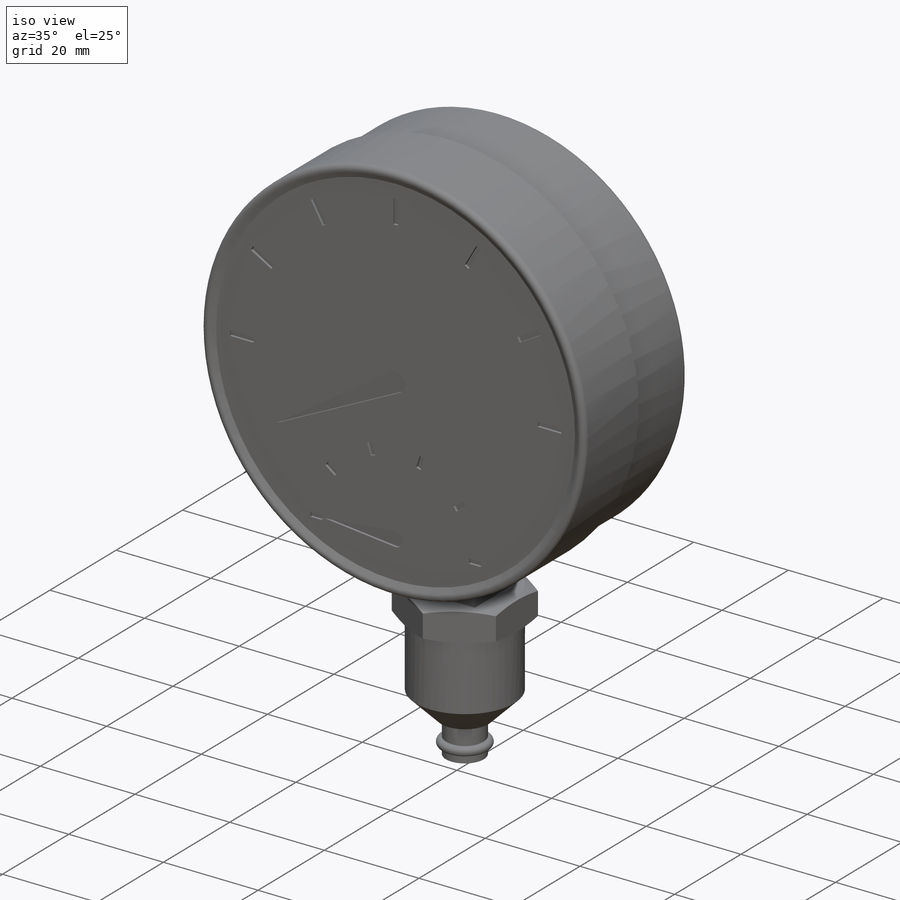
[diagram: iso view]
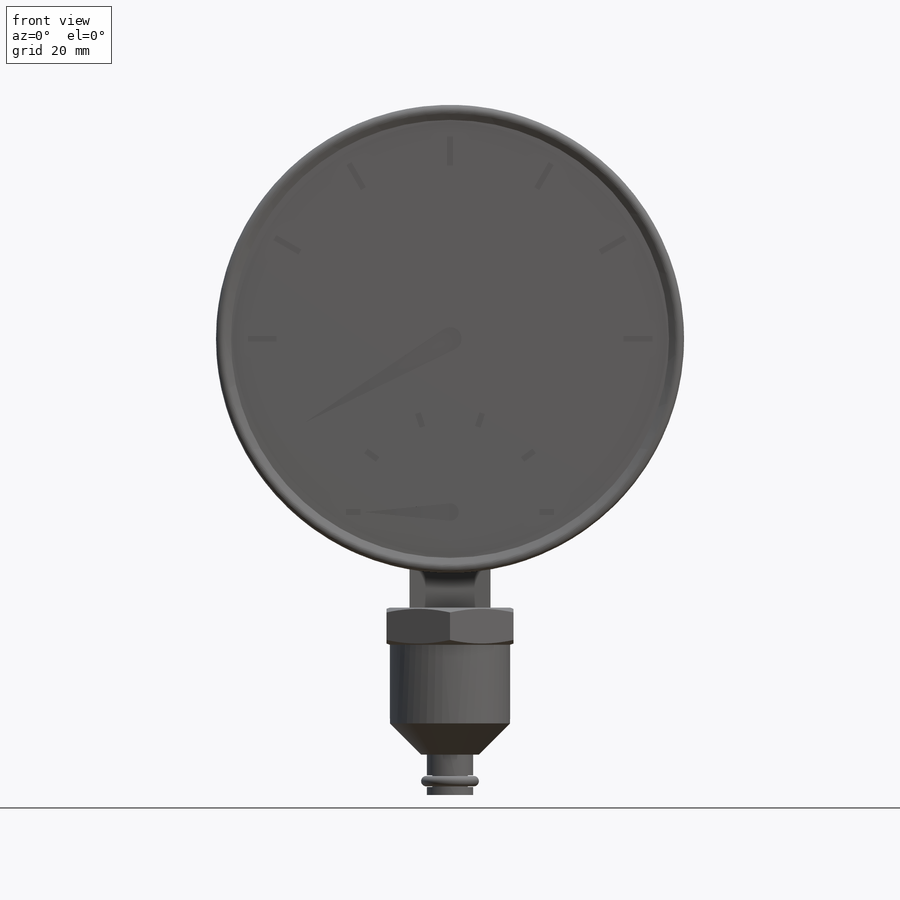
[diagram: front view]
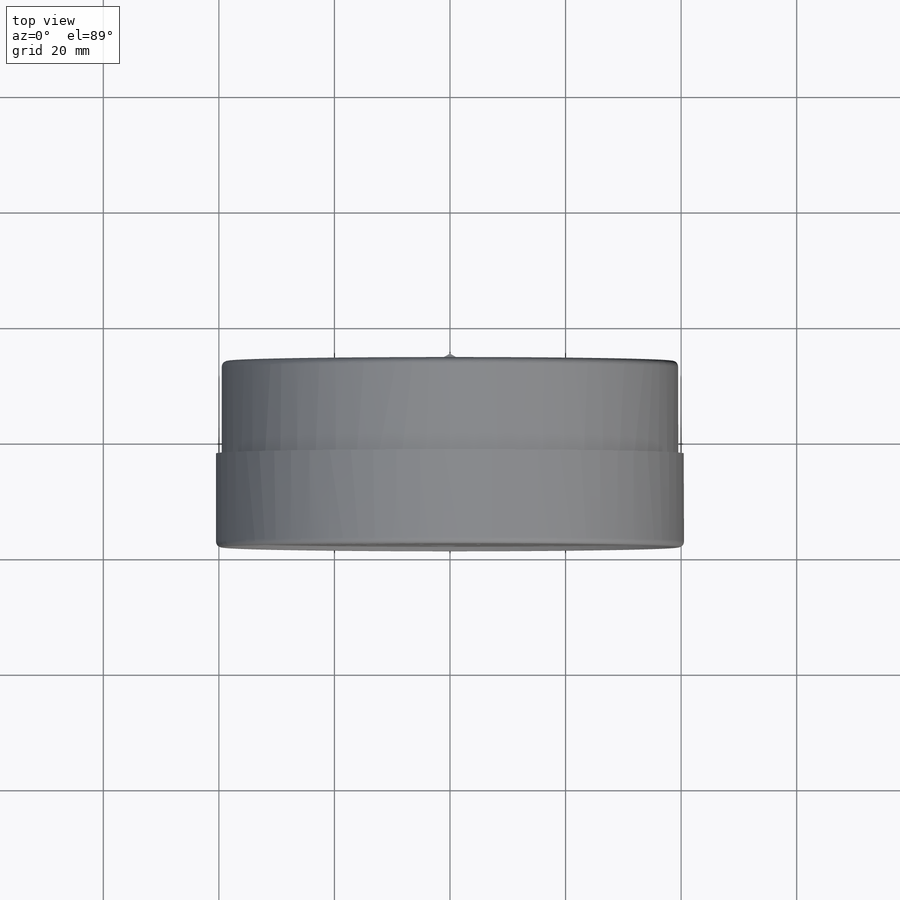
[diagram: top view]
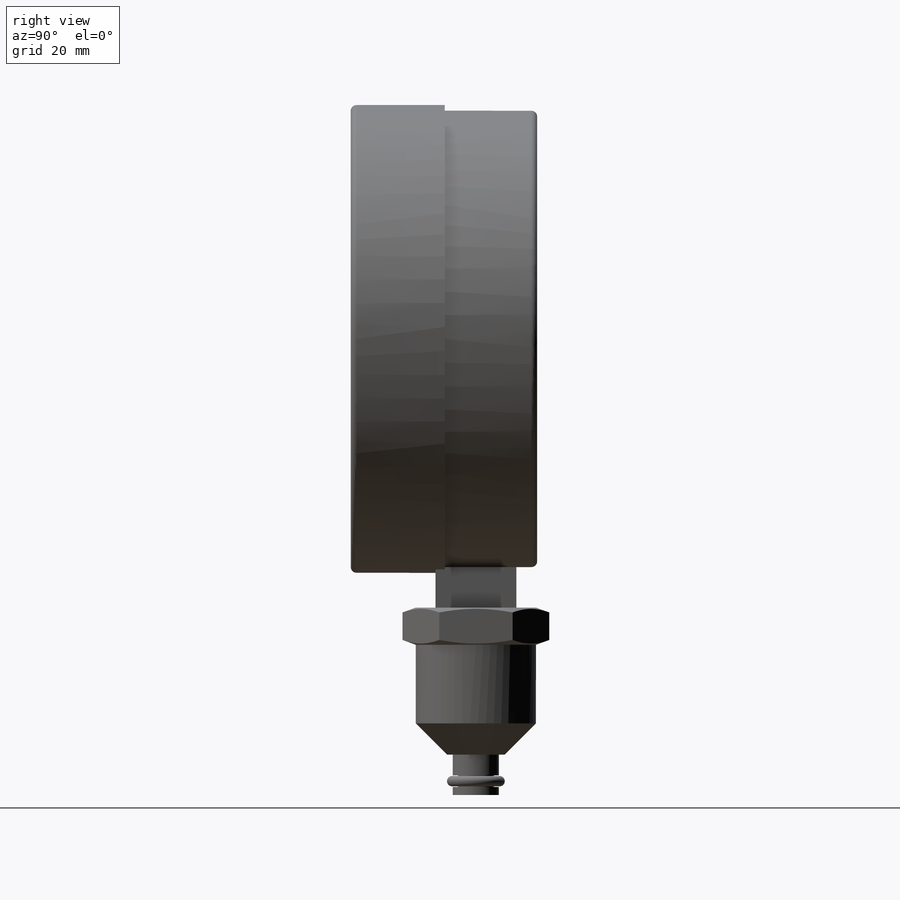
[diagram: right view]
SOLIDWORKS PART (.sldprt)
format: sldprt  version: not decoded by parser v0  size: 571,392 bytes
history: native  units: mm
features: sketch x8, plane x4, cut_extrude x4, revolve x3, pattern_circular x2, material x1, fillet x1, extrude x1 + 1 further entry (+8 scaffold rows collapsed)
feature tree (33):
  scaffold x8  (default folders/planes/origin — collapsed)
  material  "Materiál <není určen>"
  "Těla ploch"
  plane  "Horní"
  plane  "Přední"
  plane  "Pravá"
  sketch  "Skica1"  dims[c1.D1=8.0mm c1.D2=81.0mm c1.D3=80.0mm c1.D4=~16.036582mm c1.D5=181.0mm c1.D6=~15.065686mm c2.D6=45.0deg c2.D7=20.0mm c2.D8=1.5mm c2.D9=1.5mm c3.D7=~2.12132mm c4.D7=30.0deg c4.D9=33.0mm c4.D10=20.8mm c4.D11=33.0mm c4.D4=79.0mm c4.D12=17.0mm c4.D3=7.0mm c4.D5=33.0mm c4.D6=15.0mm c5.D11=2.3mm c6.D11=45.0deg c6.D13=2.7mm c6.D5=39.0mm c7.D13=9.5mm c7.D14=~4.257983mm c8.D14=20.0deg c8.D15=~5.018257mm c9.D15=20.0deg c9.D16=6.0mm c9.D17=22.0mm c9.D18=26.0mm c9.D19=1.4mm c9.D20=6.2mm c9.D21=2.0mm]
  revolve  "Rotovat1"  Angle=360deg
  fillet  "Zaoblit1"  Radius=1mm
  sketch  "Skica2"  dims[c1.D1=~17.612399mm c2.D1=120.0deg c2.D2=1.0mm c2.D3=5.0mm c2.D4=~45.002778mm c3.D1=35.0mm c3.D5=~40.003125mm c4.D1=30.0mm]
  cut_extrude  "Odebrat vysunutím1"  Depth=0.5mm
  pattern_circular  "Kruhové pole1"  Count=12 Angle=360deg
  sketch  "Skica3"  dims[D1=2.0mm D4=1.5mm D2=29.0mm D3=30.0mm D5=15.0mm]
  cut_extrude  "Odebrat vysunutím2"  Depth=0.5mm
  sketch  "Skica8"  dims[D1=2.5mm D2=18.0mm]
  cut_extrude  "Odebrat vysunutím5"  Depth=0.5mm
  pattern_circular  "Kruhové pole2"  Count=6 Angle=36deg
  plane  "Rovina2"  Offset=39.5mm
  sketch  "Skica9"  dims[D1=14.0mm D2=3.6mm]
  extrude  "Přidat vysunutím1"  Depth=7mm
  sketch  "Skica10"  dims[c1.D1=~7.861541mm c2.D1=20.0deg c2.D2=~4.695753mm c3.D2=20.0deg c3.D3=20.8mm c3.D4=6.44mm c4.D2=6.44mm c4.D4=25.44mm c4.D5=7.0mm c4.D6=~7.378219mm c5.D6=45.0deg c5.D7=13.6mm c5.D8=8.0mm c5.D9=1.4mm c5.D10=0.9mm c5.D11=2.0mm]
  revolve  "Rotovat3"  Angle=360deg
  sketch  "Skica11"  dims[D1=22.0mm]
  cut_extrude  "Odebrat vysunutím6"  [1 undecoded]
  sketch  "Skica12"  dims[D2=1.8mm D1=1.0mm]
  revolve  "Rotovat4"  Angle=360deg
decode coverage: 18 of 19 modeling features carry decoded parameters; 1 rows unclassified (native names shown)
note: ~ marks probable driven/reference dimensions
note: 1 parameter value undecoded
note: suppression state not decoded; provenance and decode notes live in map.json
